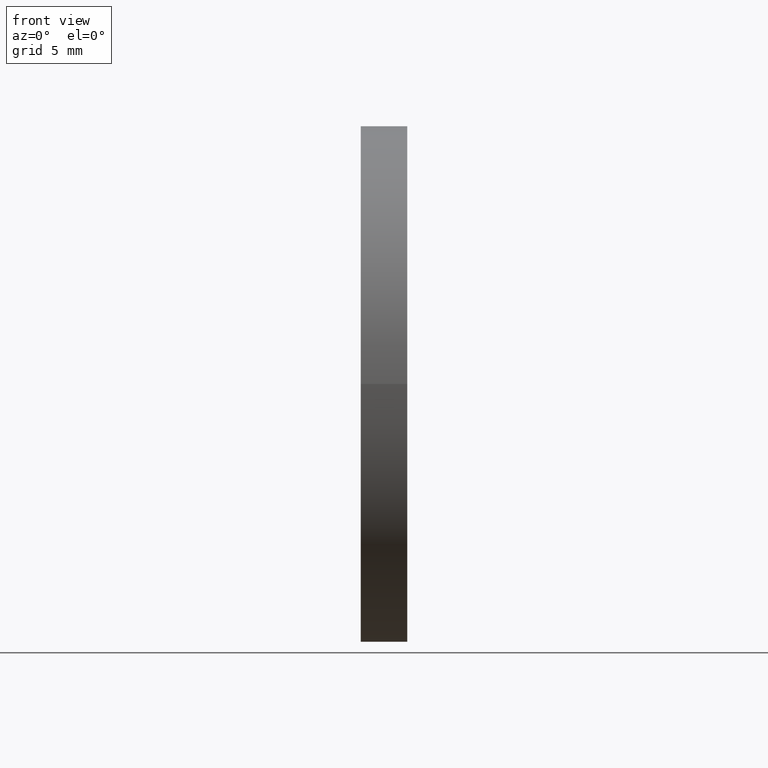
[diagram: clean part render]
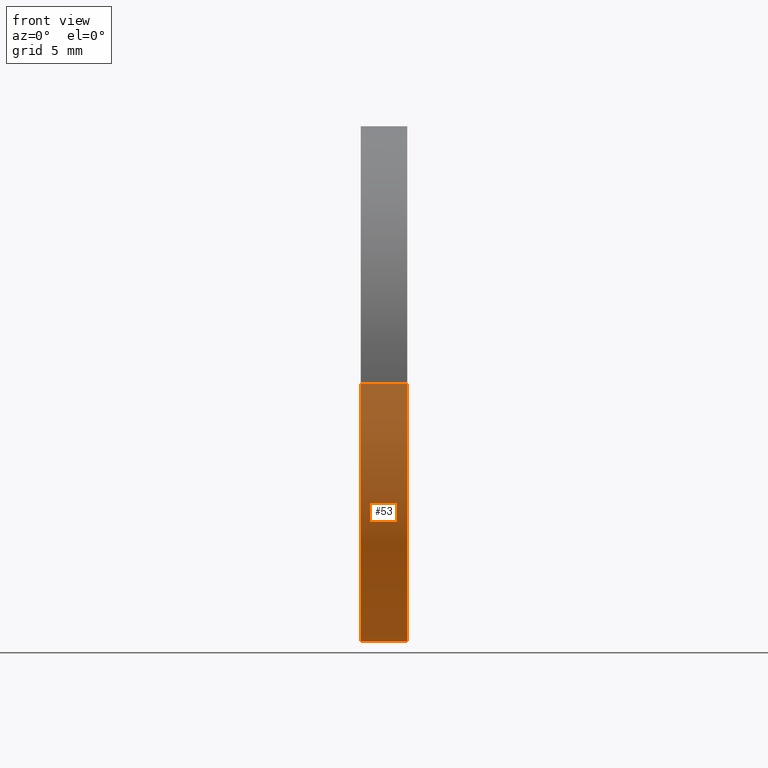
[diagram: same view with one face highlighted and labeled with its STEP entity id]
A machine part, front view. The second image highlights one B-rep face of the part: STEP entity #53.
In plain terms, the highlighted cylindrical surface (partial cylindrical patch) has radius 12.7 mm, axis along (-1, -0, -0).
Its self-contained STEP definition (entity closure, byte-faithful):
#2 = ORIENTED_EDGE ( 'NONE', *, *, #124, .T. ) ;
#8 = ORIENTED_EDGE ( 'NONE', *, *, #129, .F. ) ;
#13 = CYLINDRICAL_SURFACE ( 'NONE', #165, 12.70000000000000300 ) ;
#16 = AXIS2_PLACEMENT_3D ( 'NONE', #189, #147, #74 ) ;
#19 = DIRECTION ( 'NONE',  ( 0.0000000000000000000, -1.000000000000000000, 0.0000000000000000000 ) ) ;
#25 = CARTESIAN_POINT ( 'NONE',  ( 97.23406135539724500, 64.87808229838934400, 0.0000000000000000000 ) ) ;
#26 = DIRECTION ( 'NONE',  ( -1.000000000000000000, -4.877362175853829600E-016, -0.0000000000000000000 ) ) ;
#27 = ORIENTED_EDGE ( 'NONE', *, *, #182, .F. ) ;
#36 = CARTESIAN_POINT ( 'NONE',  ( 89.85865645361708700, 39.47808229838990700, 0.0000000000000000000 ) ) ;
#40 = VERTEX_POINT ( 'NONE', #188 ) ;
#43 = CARTESIAN_POINT ( 'NONE',  ( 97.23406135539724500, 52.17808229838991700, 0.0000000000000000000 ) ) ;
#47 = LINE ( 'NONE', #36, #106 ) ;
#53 = ADVANCED_FACE ( 'NONE', ( #155 ), #13, .T. ) ;
#62 = CIRCLE ( 'NONE', #16, 12.70000000000000300 ) ;
#70 = DIRECTION ( 'NONE',  ( -1.000000000000000000, -4.877362175853829600E-016, -0.0000000000000000000 ) ) ;
#74 = DIRECTION ( 'NONE',  ( 0.0000000000000000000, -1.000000000000000000, 0.0000000000000000000 ) ) ;
#80 = EDGE_CURVE ( 'NONE', #85, #40, #47, .T. ) ;
#82 = EDGE_LOOP ( 'NONE', ( #27, #2, #172, #8 ) ) ;
#85 = VERTEX_POINT ( 'NONE', #190 ) ;
#94 = VERTEX_POINT ( 'NONE', #25 ) ;
#98 = CARTESIAN_POINT ( 'NONE',  ( 89.85865645361708700, 52.17808229838991000, 0.0000000000000000000 ) ) ;
#100 = DIRECTION ( 'NONE',  ( -1.000000000000000000, -4.877362175853829600E-016, -0.0000000000000000000 ) ) ;
#104 = CARTESIAN_POINT ( 'NONE',  ( 89.85865645361708700, 64.87808229838991300, 1.555301434917138800E-015 ) ) ;
#106 = VECTOR ( 'NONE', #100, 1000.000000000000000 ) ;
#124 = EDGE_CURVE ( 'NONE', #94, #85, #178, .T. ) ;
#129 = EDGE_CURVE ( 'NONE', #184, #40, #62, .T. ) ;
#130 = DIRECTION ( 'NONE',  ( -1.000000000000000000, -4.877362175853829600E-016, -0.0000000000000000000 ) ) ;
#145 = CARTESIAN_POINT ( 'NONE',  ( 94.94682658132265400, 64.87808229838628900, 0.0000000000000000000 ) ) ;
#147 = DIRECTION ( 'NONE',  ( -1.000000000000000000, -4.877362175853829600E-016, -0.0000000000000000000 ) ) ;
#155 = FACE_OUTER_BOUND ( 'NONE', #82, .T. ) ;
#163 = LINE ( 'NONE', #104, #181 ) ;
#164 = DIRECTION ( 'NONE',  ( 0.0000000000000000000, -1.000000000000000000, 0.0000000000000000000 ) ) ;
#165 = AXIS2_PLACEMENT_3D ( 'NONE', #98, #70, #19 ) ;
#172 = ORIENTED_EDGE ( 'NONE', *, *, #80, .T. ) ;
#178 = CIRCLE ( 'NONE', #185, 12.70000000000007900 ) ;
#181 = VECTOR ( 'NONE', #130, 1000.000000000000000 ) ;
#182 = EDGE_CURVE ( 'NONE', #94, #184, #163, .T. ) ;
#184 = VERTEX_POINT ( 'NONE', #145 ) ;
#185 = AXIS2_PLACEMENT_3D ( 'NONE', #43, #26, #164 ) ;
#188 = CARTESIAN_POINT ( 'NONE',  ( 94.94682658132265400, 39.47808229839580500, -1.555301434916695900E-015 ) ) ;
#189 = CARTESIAN_POINT ( 'NONE',  ( 94.94682658132261100, 52.17808229838991000, 0.0000000000000000000 ) ) ;
#190 = CARTESIAN_POINT ( 'NONE',  ( 97.23406135539724500, 39.47808229839003500, -1.555301434917068800E-015 ) ) ;